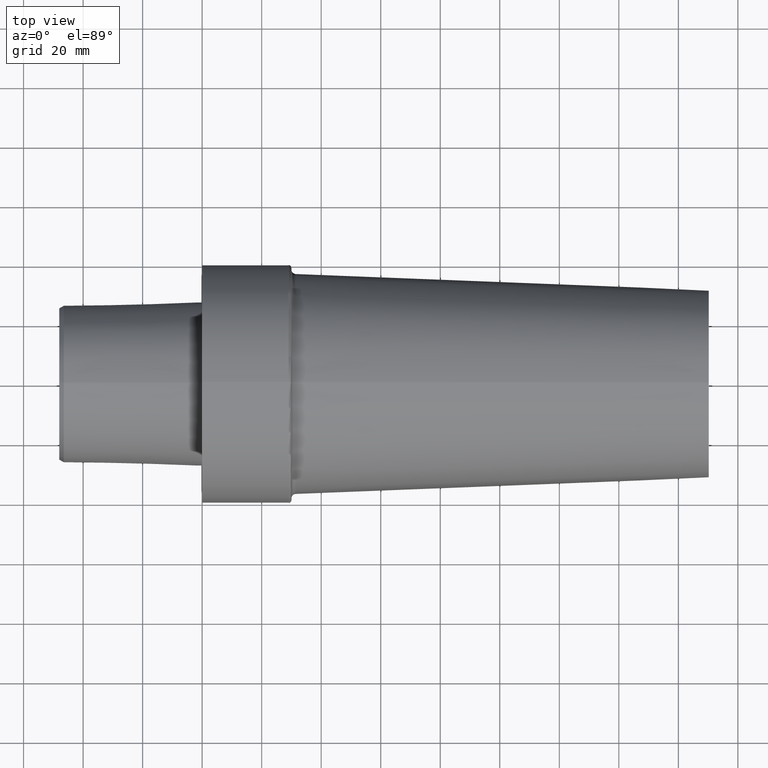
[diagram: clean part render]
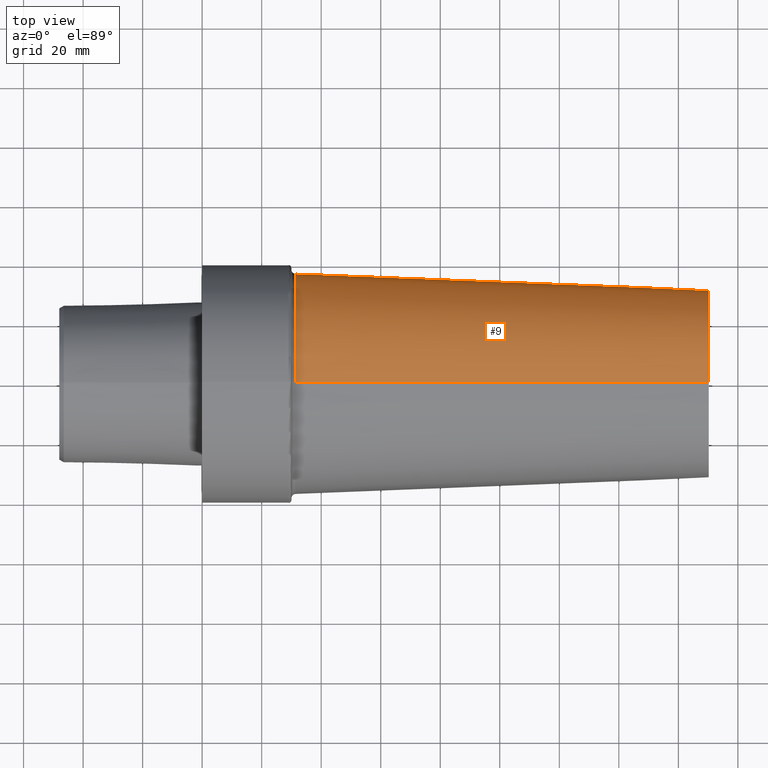
[diagram: same view with one face highlighted and labeled with its STEP entity id]
A machine part, top view. The second image highlights one B-rep face of the part: STEP entity #9.
In plain terms, the highlighted conical surface has half-angle 2.247 deg.
Its self-contained STEP definition (entity closure, byte-faithful):
#9 = ADVANCED_FACE ( 'NONE', ( #29 ), #125, .T. ) ;
#29 = FACE_OUTER_BOUND ( 'NONE', #523, .T. ) ;
#31 = AXIS2_PLACEMENT_3D ( 'NONE', #527, #532, #149 ) ;
#53 = CARTESIAN_POINT ( 'NONE',  ( 170.1999504090875917, 3.857637413950260996E-15, -31.49999997253168615 ) ) ;
#77 = VECTOR ( 'NONE', #302, 1000.000000000000114 ) ;
#99 = DIRECTION ( 'NONE',  ( -0.9992314028999961240, 0.000000000000000000, 0.03919953390673725641 ) ) ;
#107 = VERTEX_POINT ( 'NONE', #110 ) ;
#110 = CARTESIAN_POINT ( 'NONE',  ( 31.44120067062139512, 0.000000000000000000, 36.94346211697936155 ) ) ;
#113 = CARTESIAN_POINT ( 'NONE',  ( 170.1999504090875917, 4.190953338524140822E-15, -31.49999997253168615 ) ) ;
#125 = CONICAL_SURFACE ( 'NONE', #533, 31.49999997253168615, 0.03920957987802033140 ) ;
#134 = EDGE_CURVE ( 'NONE', #479, #135, #244, .T. ) ;
#135 = VERTEX_POINT ( 'NONE', #113 ) ;
#148 = VECTOR ( 'NONE', #99, 1000.000000000000114 ) ;
#149 = DIRECTION ( 'NONE',  ( 0.000000000000000000, 0.000000000000000000, 1.000000000000000000 ) ) ;
#190 = EDGE_CURVE ( 'NONE', #107, #229, #445, .T. ) ;
#193 = ORIENTED_EDGE ( 'NONE', *, *, #190, .F. ) ;
#203 = CARTESIAN_POINT ( 'NONE',  ( 31.44120067062139512, 0.000000000000000000, 0.000000000000000000 ) ) ;
#229 = VERTEX_POINT ( 'NONE', #296 ) ;
#232 = DIRECTION ( 'NONE',  ( -1.000000000000000000, 0.000000000000000000, 0.000000000000000000 ) ) ;
#239 = DIRECTION ( 'NONE',  ( 0.000000000000000000, 0.000000000000000000, 1.000000000000000000 ) ) ;
#244 = CIRCLE ( 'NONE', #31, 31.49999997253168615 ) ;
#260 = ORIENTED_EDGE ( 'NONE', *, *, #134, .T. ) ;
#271 = AXIS2_PLACEMENT_3D ( 'NONE', #203, #502, #334 ) ;
#296 = CARTESIAN_POINT ( 'NONE',  ( 31.44120067062139512, 4.524269263098024593E-15, -36.94346211697936155 ) ) ;
#302 = DIRECTION ( 'NONE',  ( -0.9992314028999961240, 4.800558372695389665E-18, -0.03919953390673725641 ) ) ;
#311 = LINE ( 'NONE', #53, #77 ) ;
#325 = EDGE_CURVE ( 'NONE', #135, #229, #311, .T. ) ;
#334 = DIRECTION ( 'NONE',  ( 0.000000000000000000, 0.000000000000000000, 1.000000000000000000 ) ) ;
#340 = LINE ( 'NONE', #392, #148 ) ;
#342 = EDGE_CURVE ( 'NONE', #479, #107, #340, .T. ) ;
#344 = ORIENTED_EDGE ( 'NONE', *, *, #342, .F. ) ;
#362 = CARTESIAN_POINT ( 'NONE',  ( 170.1999504090875917, 0.000000000000000000, 31.49999997253168615 ) ) ;
#392 = CARTESIAN_POINT ( 'NONE',  ( 170.1999504090875917, 0.000000000000000000, 31.49999997253168615 ) ) ;
#445 = CIRCLE ( 'NONE', #271, 36.94346211697936155 ) ;
#479 = VERTEX_POINT ( 'NONE', #362 ) ;
#486 = CARTESIAN_POINT ( 'NONE',  ( 170.1999504090875917, 0.000000000000000000, 0.000000000000000000 ) ) ;
#502 = DIRECTION ( 'NONE',  ( -1.000000000000000000, 0.000000000000000000, 0.000000000000000000 ) ) ;
#505 = ORIENTED_EDGE ( 'NONE', *, *, #325, .T. ) ;
#523 = EDGE_LOOP ( 'NONE', ( #260, #505, #193, #344 ) ) ;
#527 = CARTESIAN_POINT ( 'NONE',  ( 170.1999504090875917, 0.000000000000000000, 0.000000000000000000 ) ) ;
#532 = DIRECTION ( 'NONE',  ( -1.000000000000000000, 0.000000000000000000, 0.000000000000000000 ) ) ;
#533 = AXIS2_PLACEMENT_3D ( 'NONE', #486, #232, #239 ) ;